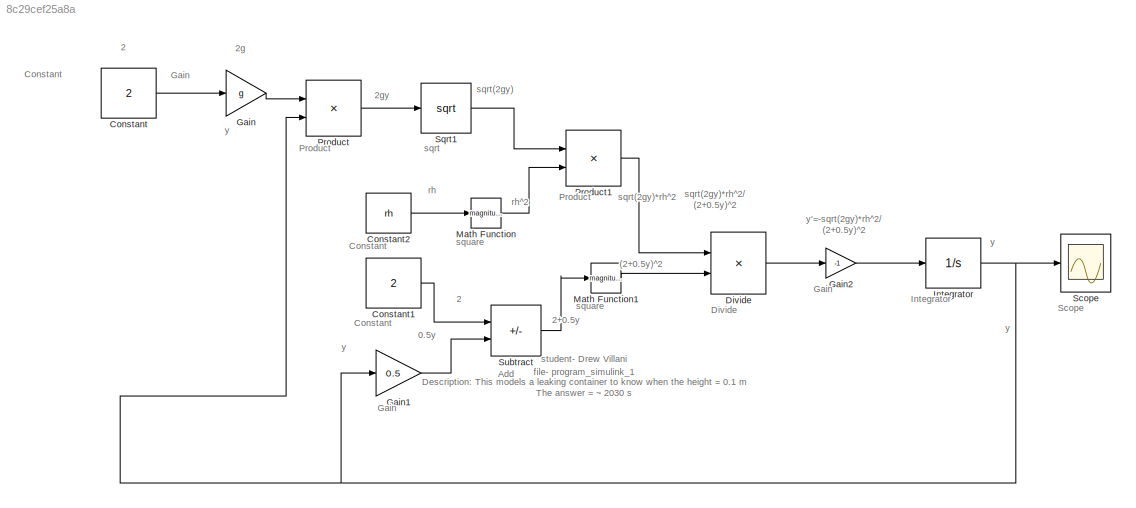
MODEL slx_8c29cef25a8a
KIND model
CONFIG AbsTol = auto
CONFIG EnableMultiTasking = off
CONFIG FixedStep = auto
CONFIG MaxStep = auto
CONFIG MinStep = auto
CONFIG RelTol = 1e-3
CONFIG SampleTimeConstraint = Unconstrained
CONFIG SolverName = VariableStepAuto
CONFIG StartTime = 0.0
CONFIG StopTime = 3000
BLOCK [Constant] Constant
  Value = 2
BLOCK [Constant] Constant1
  Value = 2
BLOCK [Constant] Constant2
  Value = rh
BLOCK [Product] Divide
  Inputs = */
BLOCK [Gain] Gain
  Gain = g
BLOCK [Gain] Gain1
  Gain = 0.5
BLOCK [Gain] Gain2
  Gain = -1
BLOCK [Integrator] Integrator
  InitialCondition = y0
BLOCK [Math] Math Function
  Operator = magnitude^2
BLOCK [Math] Math Function1
  Operator = magnitude^2
BLOCK [Product] Product
BLOCK [Product] Product1
BLOCK [Scope] Scope
  Floating = off
  NumInputPorts = 1
  ScopeSpecificationString = Simulink.scopes.TimeScopeBlockCfg('CurrentConfiguration', extmgr.ConfigurationSet(extmgr.Configuration('Core','General UI',true),extmgr.Configuration('Core','Source UI',true),extmgr.Configuration('Sources','WiredSimulink',true),extmgr.Configuration('Visuals','Time Domain',true,'SerializedDisplays',{struct('MinYLimReal','0.09986','MaxYLimReal','0.10061','YLabelReal','','MinYLimMag','0.09986','MaxYL...<+1494ch>
BLOCK [Sqrt] Sqrt1
BLOCK [Sum] Subtract
  IconShape = rectangular
  Inputs = +-
ANNOTATION (root): (2+0.5y)^2
ANNOTATION (root): 0.5y
ANNOTATION (root): 2
ANNOTATION (root): 2+0.5y
ANNOTATION (root): 2g
ANNOTATION (root): 2gy
ANNOTATION (root): file- program_simulink_1 student- Drew Villani Description: This models a leaking container to know when the height = 0.1 m The answer = ~ 2030 s
ANNOTATION (root): Add
ANNOTATION (root): Constant
ANNOTATION (root): Divide
ANNOTATION (root): Gain
ANNOTATION (root): Integrator
ANNOTATION (root): Product
ANNOTATION (root): Scope
ANNOTATION (root): rh
ANNOTATION (root): rh^2
ANNOTATION (root): sqrt
ANNOTATION (root): sqrt(2gy)
ANNOTATION (root): sqrt(2gy)*rh^2
ANNOTATION (root): sqrt(2gy)*rh^2/ (2+0.5y)^2
ANNOTATION (root): square
ANNOTATION (root): y
ANNOTATION (root): y'=-sqrt(2gy)*rh^2/ (2+0.5y)^2
LINE Constant1:1 -> Subtract:1
LINE Constant2:1 -> Math Function:1
LINE Constant:1 -> Gain:1
LINE Divide:1 -> Gain2:1
LINE Gain1:1 -> Subtract:2
LINE Gain2:1 -> Integrator:1
LINE Gain:1 -> Product:1
NET Integrator:1 -> Gain1:1, Product:2, Scope:1
LINE Math Function1:1 -> Divide:2
LINE Math Function:1 -> Product1:2
LINE Product1:1 -> Divide:1
LINE Product:1 -> Sqrt1:1
LINE Sqrt1:1 -> Product1:1
LINE Subtract:1 -> Math Function1:1
note: NET lines group one-source signal fan-out (src -> all destinations, sorted); 1:1 wires keep LINE
